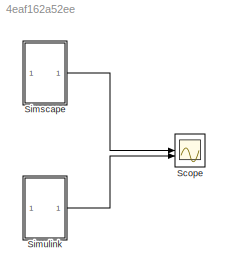
MODEL slx_4eaf162a52ee
KIND model
CONFIG AbsTol = auto
CONFIG EnableMultiTasking = off
CONFIG FixedStep = auto
CONFIG MaxStep = auto
CONFIG MinStep = auto
CONFIG RelTol = 1e-3
CONFIG SampleTimeConstraint = Unconstrained
CONFIG SolverName = VariableStepAuto
CONFIG StartTime = 0.0
CONFIG StopTime = 10.0
BLOCK [Scope] Scope
  Floating = off
  NumInputPorts = 2
  ScopeSpecificationString = Simulink.scopes.TimeScopeBlockCfg('CurrentConfiguration', extmgr.ConfigurationSet(extmgr.Configuration('Core','General UI',true,'FigureColor',[0 0 0]),extmgr.Configuration('Core','Source UI',true),extmgr.Configuration('Sources','WiredSimulink',true,'DataLoggingVariableName','ScopeData1'),extmgr.Configuration('Visuals','Time Domain',true,'SerializedDisplays',{struct('MinYLimReal','-2.50002','MaxYLi...<+2132ch>
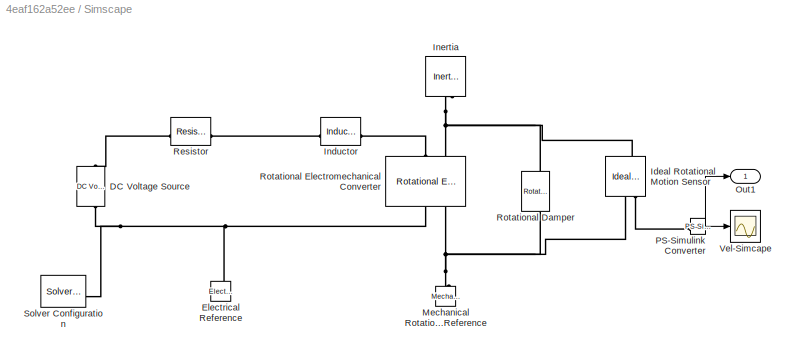
BLOCK [SubSystem] Simscape
BLOCK [Reference] Simscape/DC Voltage Source  REF=fl_lib/Electrical/Electrical Sources/DC Voltage Source
  NameLocation = right
  SourceBlock = fl_lib/Electrical/Electrical Sources/DC Voltage Source
  SourceType = DC Voltage Source
BLOCK [Reference] Simscape/Electrical Reference  REF=fl_lib/Electrical/Electrical Elements/Electrical Reference
  NameLocation = right
  SourceBlock = fl_lib/Electrical/Electrical Elements/Electrical Reference
  SourceType = Electrical Reference
BLOCK [Reference] Simscape/Ideal Rotational Motion Sensor  REF=fl_lib/Mechanical/Mechanical Sensors/Ideal Rotational
Motion Sensor
  NameLocation = right
  SourceBlock = fl_lib/Mechanical/Mechanical Sensors/Ideal Rotational\nMotion Sensor
  SourceType = Ideal Rotational\nMotion Sensor
BLOCK [Reference] Simscape/Inductor  REF=fl_lib/Electrical/Electrical Elements/Inductor
  SourceBlock = fl_lib/Electrical/Electrical Elements/Inductor
  SourceType = Inductor
BLOCK [Reference] Simscape/Inertia  REF=fl_lib/Mechanical/Rotational Elements/Inertia
  NameLocation = left
  SourceBlock = fl_lib/Mechanical/Rotational Elements/Inertia
  SourceType = Inertia
BLOCK [Reference] Simscape/Mechanical Rotational Reference  REF=fl_lib/Mechanical/Rotational Elements/Mechanical
Rotational Reference
  NameLocation = right
  SourceBlock = fl_lib/Mechanical/Rotational Elements/Mechanical\nRotational Reference
  SourceType = Mechanical\nRotational Reference
BLOCK [Outport] Simscape/Out1
BLOCK [Reference] Simscape/PS-Simulink Converter  REF=nesl_utility/PS-Simulink
Converter
  SourceBlock = nesl_utility/PS-Simulink\nConverter
  SourceType = PS-Simulink\nConverter
BLOCK [Reference] Simscape/Resistor  REF=fl_lib/Electrical/Electrical Elements/Resistor
  SourceBlock = fl_lib/Electrical/Electrical Elements/Resistor
  SourceType = Resistor
BLOCK [Reference] Simscape/Rotational Damper  REF=fl_lib/Mechanical/Rotational Elements/Rotational Damper
  NameLocation = left
  SourceBlock = fl_lib/Mechanical/Rotational Elements/Rotational Damper
  SourceType = Rotational Damper
BLOCK [Reference] Simscape/Rotational Electromechanical Converter  REF=fl_lib/Electrical/Electrical Elements/Rotational
Electromechanical
Converter
  NameLocation = right
  SourceBlock = fl_lib/Electrical/Electrical Elements/Rotational\nElectromechanical\nConverter
  SourceType = Rotational\nElectromechanical\nConverter
BLOCK [Reference] Simscape/Solver Configuration  REF=nesl_utility/Solver
Configuration
  SourceBlock = nesl_utility/Solver\nConfiguration
  SourceType = Solver\nConfiguration
BLOCK [Scope] Simscape/Vel-Simcape
  Floating = off
  NumInputPorts = 1
  ScopeSpecificationString = Simulink.scopes.TimeScopeBlockCfg('CurrentConfiguration', extmgr.ConfigurationSet(extmgr.Configuration('Core','General UI',true),extmgr.Configuration('Core','Source UI',true),extmgr.Configuration('Sources','WiredSimulink',true),extmgr.Configuration('Visuals','Time Domain',true,'SerializedDisplays',{struct('MinYLimReal','-2.50002','MaxYLimReal','22.50022','YLabelReal','','MinYLimMag','0.00000','Max...<+1385ch>
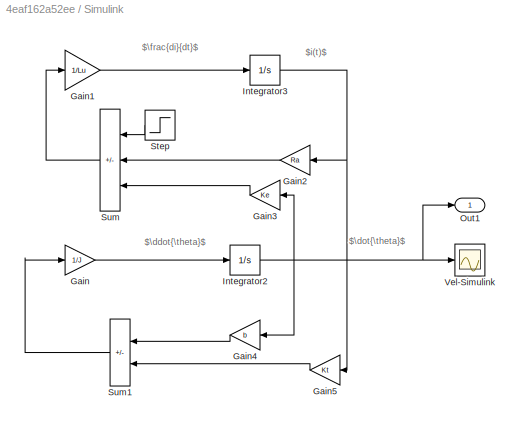
BLOCK [SubSystem] Simulink
BLOCK [Gain] Simulink/Gain
  Gain = 1/J
BLOCK [Gain] Simulink/Gain1
  Gain = 1/Lu
BLOCK [Gain] Simulink/Gain2
  Gain = Ra
  NameLocation = top
BLOCK [Gain] Simulink/Gain3
  Gain = Ke
  NameLocation = top
BLOCK [Gain] Simulink/Gain4
  Gain = b
  NameLocation = top
BLOCK [Gain] Simulink/Gain5
  Gain = Kt
  NameLocation = top
BLOCK [Integrator] Simulink/Integrator2
BLOCK [Integrator] Simulink/Integrator3
BLOCK [Outport] Simulink/Out1
BLOCK [Step] Simulink/Step
  After = 5
  NameLocation = top
  SampleTime = 0
  Time = 0
BLOCK [Sum] Simulink/Sum
  IconShape = rectangular
  Inputs = +--
  NameLocation = top
BLOCK [Sum] Simulink/Sum1
  IconShape = rectangular
  Inputs = -+
  NameLocation = top
BLOCK [Scope] Simulink/Vel-Simulink
  Floating = off
  NumInputPorts = 1
  ScopeSpecificationString = Simulink.scopes.TimeScopeBlockCfg('CurrentConfiguration', extmgr.ConfigurationSet(extmgr.Configuration('Core','General UI',true),extmgr.Configuration('Core','Source UI',true),extmgr.Configuration('Sources','WiredSimulink',true,'DataLoggingVariableName','ScopeData2'),extmgr.Configuration('Visuals','Time Domain',true,'SerializedDisplays',{struct('MinYLimReal','-2.50002','MaxYLimReal','22.50022','YLa...<+1414ch>
ANNOTATION Simulink: $\ddot{\theta}$
ANNOTATION Simulink: $\dot{\theta}$
ANNOTATION Simulink: $\frac{di}{dt}$
ANNOTATION Simulink: $i(t)$
NET Simscape/PS-Simulink Converter:1 -> Simscape/Out1:1, Simscape/Vel-Simcape:1
LINE Simscape:1 -> Scope:1
LINE Simulink/Gain1:1 -> Simulink/Integrator3:1
LINE Simulink/Gain2:1 -> Simulink/Sum:2
LINE Simulink/Gain3:1 -> Simulink/Sum:3
LINE Simulink/Gain4:1 -> Simulink/Sum1:1
LINE Simulink/Gain5:1 -> Simulink/Sum1:2
LINE Simulink/Gain:1 -> Simulink/Integrator2:1
NET Simulink/Integrator2:1 -> Simulink/Gain3:1, Simulink/Gain4:1, Simulink/Out1:1, Simulink/Vel-Simulink:1
NET Simulink/Integrator3:1 -> Simulink/Gain2:1, Simulink/Gain5:1
LINE Simulink/Step:1 -> Simulink/Sum:1
LINE Simulink/Sum1:1 -> Simulink/Gain:1
LINE Simulink/Sum:1 -> Simulink/Gain1:1
LINE Simulink:1 -> Scope:2
PLINE Simscape/DC Voltage Source:LConn1 -- Simscape/Resistor:LConn1
PNET net1: Simscape/DC Voltage Source:RConn1 -- Simscape/Electrical Reference:LConn1 -- Simscape/Rotational Electromechanical Converter:RConn1 -- Simscape/Solver Configuration:RConn1
PNET net2: Simscape/Ideal Rotational Motion Sensor:LConn1 -- Simscape/Inertia:LConn1 -- Simscape/Rotational Damper:LConn1 -- Simscape/Rotational Electromechanical Converter:LConn2
PNET net3: Simscape/Ideal Rotational Motion Sensor:RConn1 -- Simscape/Mechanical Rotational Reference:LConn1 -- Simscape/Rotational Damper:RConn1 -- Simscape/Rotational Electromechanical Converter:RConn2
PLINE Simscape/Ideal Rotational Motion Sensor:RConn2 -- Simscape/PS-Simulink Converter:LConn1
PLINE Simscape/Inductor:LConn1 -- Simscape/Resistor:RConn1
PLINE Simscape/Inductor:RConn1 -- Simscape/Rotational Electromechanical Converter:LConn1
note: NET lines group one-source signal fan-out (src -> all destinations, sorted); 1:1 wires keep LINE; PNET lines group multi-terminal physical nets as a canonical sorted terminal list (undirected conserving connections); 2-terminal nets keep the pairwise PLINE form
